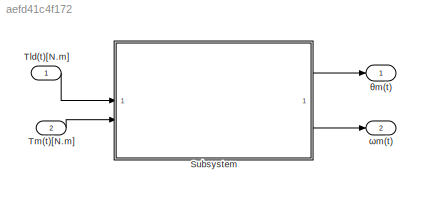
MODEL slx_aefd41c4f172
KIND model
CONFIG AbsTol = auto
CONFIG EnableMultiTasking = off
CONFIG FixedStep = auto
CONFIG MaxStep = auto
CONFIG MinStep = auto
CONFIG PostLoadFcn = Subsistema_Mecanico\nrun("parametros_sistema_completo.mlx")
CONFIG RelTol = 1e-3
CONFIG SampleTimeConstraint = Unconstrained
CONFIG SolverName = VariableStepAuto
CONFIG StartTime = 0.0
CONFIG StopTime = 10.0
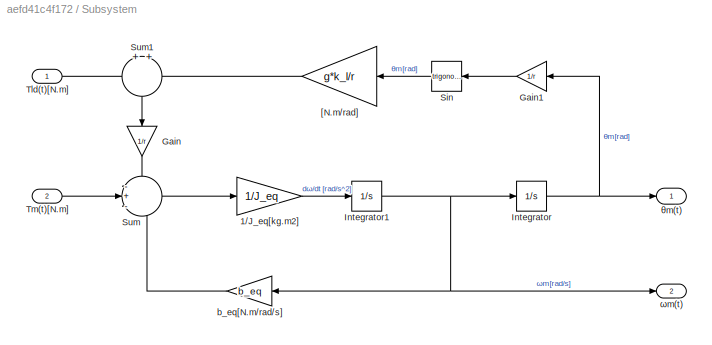
BLOCK [SubSystem] Subsystem
BLOCK [Gain] Subsystem/1//J_eq[kg.m2]
  Gain = 1/J_eq
BLOCK [Gain] Subsystem/Gain
  Gain = 1/r
  NameLocation = left
BLOCK [Gain] Subsystem/Gain1
  Gain = 1/r
  NameLocation = top
BLOCK [Integrator] Subsystem/Integrator
BLOCK [Integrator] Subsystem/Integrator1
BLOCK [Trigonometry] Subsystem/Sin
  NameLocation = top
BLOCK [Sum] Subsystem/Sum
  Inputs = -+-
BLOCK [Sum] Subsystem/Sum1
  NameLocation = left
BLOCK [Inport] Subsystem/Tld(t)[N.m]
BLOCK [Inport] Subsystem/Tm(t)[N.m]
  Port = 2
BLOCK [Gain] Subsystem/[N.m//rad]
  Gain = g*k_l/r
  NameLocation = top
BLOCK [Gain] Subsystem/b_eq[N.m//rad//s]
  Gain = b_eq
  NameLocation = top
BLOCK [Outport] Subsystem/θm(t)
  NameLocation = top
BLOCK [Outport] Subsystem/ωm(t)
  Port = 2
BLOCK [Inport] Tld(t)[N.m]
BLOCK [Inport] Tm(t)[N.m]
  Port = 2
BLOCK [Outport] θm(t)
  NameLocation = top
BLOCK [Outport] ωm(t)
  Port = 2
LINE Subsystem/1//J_eq[kg.m2]:1 -> Subsystem/Integrator1:1
LINE Subsystem/Gain1:1 -> Subsystem/Sin:1
LINE Subsystem/Gain:1 -> Subsystem/Sum:1
NET Subsystem/Integrator1:1 -> Subsystem/Integrator:1, Subsystem/b_eq[N.m//rad//s]:1, Subsystem/ωm(t):1
NET Subsystem/Integrator:1 -> Subsystem/Gain1:1, Subsystem/θm(t):1
LINE Subsystem/Sin:1 -> Subsystem/[N.m//rad]:1
LINE Subsystem/Sum1:1 -> Subsystem/Gain:1
LINE Subsystem/Sum:1 -> Subsystem/1//J_eq[kg.m2]:1
LINE Subsystem/Tld(t)[N.m]:1 -> Subsystem/Sum1:1
LINE Subsystem/Tm(t)[N.m]:1 -> Subsystem/Sum:2
LINE Subsystem/[N.m//rad]:1 -> Subsystem/Sum1:2
LINE Subsystem/b_eq[N.m//rad//s]:1 -> Subsystem/Sum:3
LINE Subsystem:1 -> θm(t):1
LINE Subsystem:2 -> ωm(t):1
LINE Tld(t)[N.m]:1 -> Subsystem:1
LINE Tm(t)[N.m]:1 -> Subsystem:2
note: NET lines group one-source signal fan-out (src -> all destinations, sorted); 1:1 wires keep LINE
